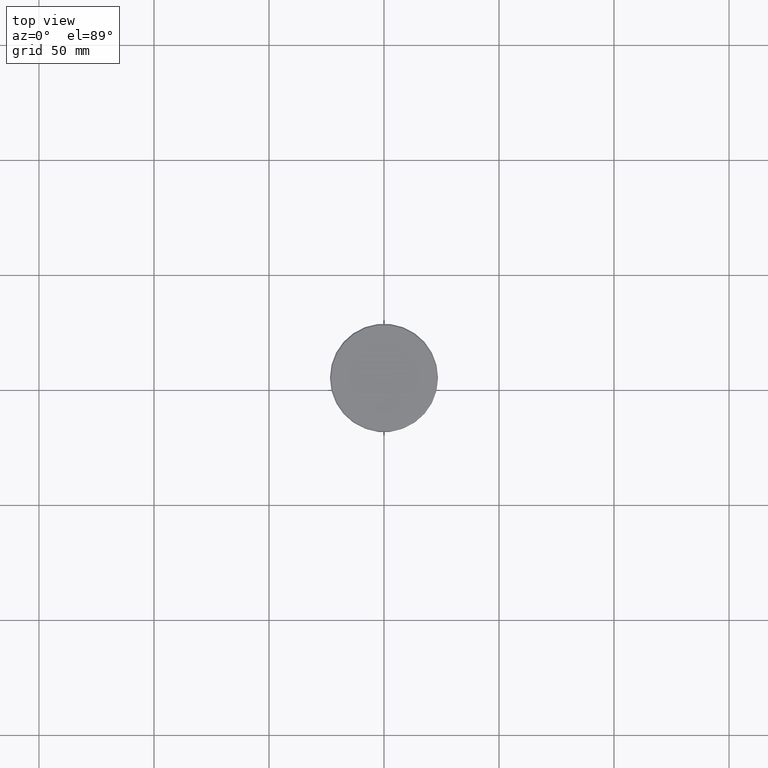
[diagram: clean part render]
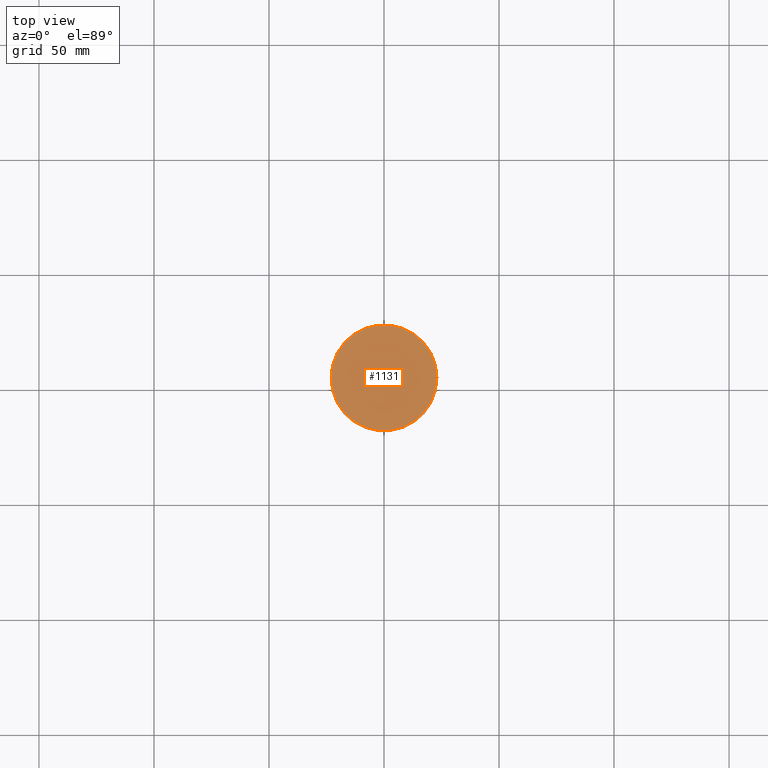
[diagram: same view with one face highlighted and labeled with its STEP entity id]
A machine part, top view. The second image highlights one B-rep face of the part: STEP entity #1131.
In plain terms, the highlighted planar face has unit normal (0, -0, 1).
Its self-contained STEP definition (entity closure, byte-faithful):
#101 = EDGE_LOOP ( 'NONE', ( #1079, #448 ) ) ;
#217 = VERTEX_POINT ( 'NONE', #731 ) ;
#308 = FACE_OUTER_BOUND ( 'NONE', #101, .T. ) ;
#328 = DIRECTION ( 'NONE',  ( -0.000000000000000000, -0.000000000000000000, 1.000000000000000000 ) ) ;
#350 = DIRECTION ( 'NONE',  ( 1.000000000000000000, 0.000000000000000000, 0.000000000000000000 ) ) ;
#387 = AXIS2_PLACEMENT_3D ( 'NONE', #779, #328, #688 ) ;
#448 = ORIENTED_EDGE ( 'NONE', *, *, #1022, .T. ) ;
#489 = CARTESIAN_POINT ( 'NONE',  ( -23.00000000000002487, 0.000000000000000000, 0.000000000000000000 ) ) ;
#514 = VERTEX_POINT ( 'NONE', #489 ) ;
#688 = DIRECTION ( 'NONE',  ( 1.000000000000000000, 0.000000000000000000, 0.000000000000000000 ) ) ;
#731 = CARTESIAN_POINT ( 'NONE',  ( 23.00000000000002487, 2.847303808017597717E-15, 0.000000000000000000 ) ) ;
#747 = DIRECTION ( 'NONE',  ( 1.000000000000000000, 0.000000000000000000, 0.000000000000000000 ) ) ;
#779 = CARTESIAN_POINT ( 'NONE',  ( 0.000000000000000000, 0.000000000000000000, 0.000000000000000000 ) ) ;
#793 = DIRECTION ( 'NONE',  ( -0.000000000000000000, -0.000000000000000000, 1.000000000000000000 ) ) ;
#815 = CIRCLE ( 'NONE', #387, 23.00000000000002487 ) ;
#854 = PLANE ( 'NONE',  #1100 ) ;
#869 = CARTESIAN_POINT ( 'NONE',  ( 0.000000000000000000, 0.000000000000000000, 0.000000000000000000 ) ) ;
#952 = EDGE_CURVE ( 'NONE', #514, #217, #1097, .T. ) ;
#960 = AXIS2_PLACEMENT_3D ( 'NONE', #869, #793, #350 ) ;
#1022 = EDGE_CURVE ( 'NONE', #217, #514, #815, .T. ) ;
#1028 = DIRECTION ( 'NONE',  ( 0.000000000000000000, -0.000000000000000000, 1.000000000000000000 ) ) ;
#1038 = CARTESIAN_POINT ( 'NONE',  ( 0.000000000000000000, 0.000000000000000000, 0.000000000000000000 ) ) ;
#1079 = ORIENTED_EDGE ( 'NONE', *, *, #952, .T. ) ;
#1097 = CIRCLE ( 'NONE', #960, 23.00000000000002487 ) ;
#1100 = AXIS2_PLACEMENT_3D ( 'NONE', #1038, #1028, #747 ) ;
#1131 = ADVANCED_FACE ( 'NONE', ( #308 ), #854, .T. ) ;